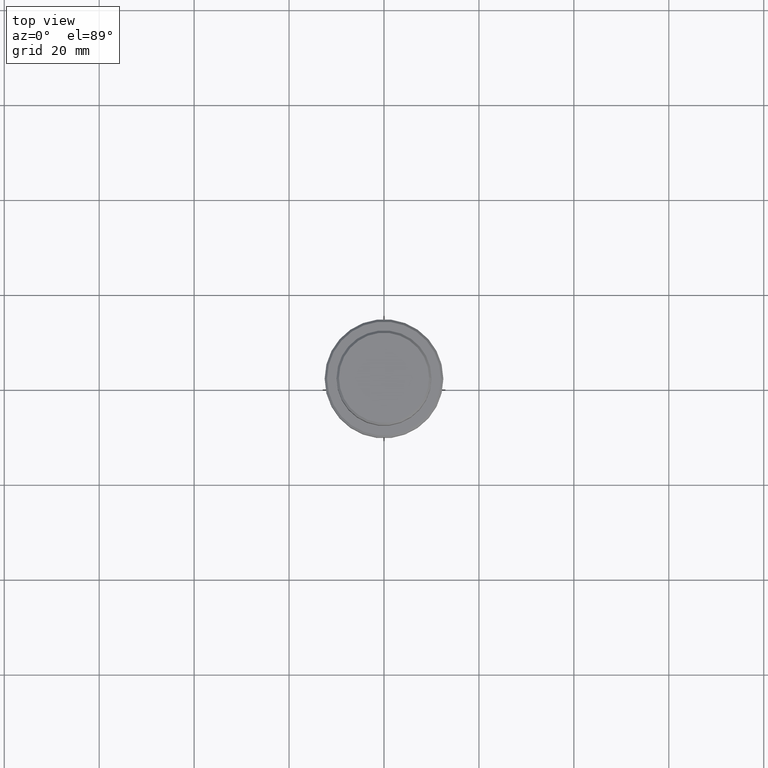
[diagram: clean part render]
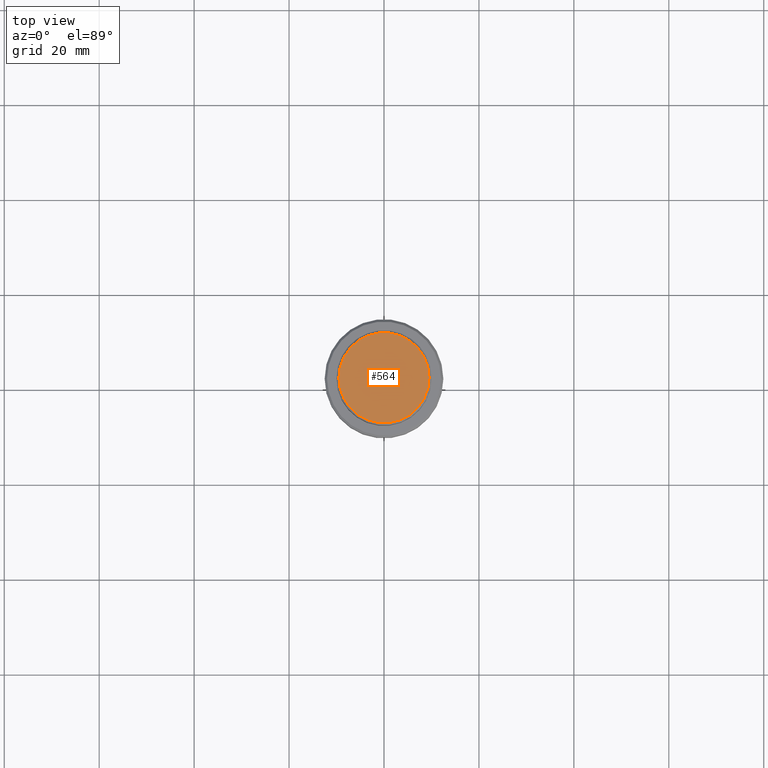
[diagram: same view with one face highlighted and labeled with its STEP entity id]
A machine part, top view. The second image highlights one B-rep face of the part: STEP entity #564.
In plain terms, the highlighted planar face has unit normal (0, -0, 1).
Its self-contained STEP definition (entity closure, byte-faithful):
#1 = PLANE ( 'NONE',  #550 ) ;
#16 = EDGE_LOOP ( 'NONE', ( #1043, #601 ) ) ;
#50 = VERTEX_POINT ( 'NONE', #798 ) ;
#156 = DIRECTION ( 'NONE',  ( -0.000000000000000000, -0.000000000000000000, 1.000000000000000000 ) ) ;
#255 = CIRCLE ( 'NONE', #1164, 9.500000000000008882 ) ;
#326 = CARTESIAN_POINT ( 'NONE',  ( 0.000000000000000000, 0.000000000000000000, 0.000000000000000000 ) ) ;
#504 = DIRECTION ( 'NONE',  ( -0.000000000000000000, -0.000000000000000000, 1.000000000000000000 ) ) ;
#550 = AXIS2_PLACEMENT_3D ( 'NONE', #326, #1401, #1409 ) ;
#564 = ADVANCED_FACE ( 'NONE', ( #649 ), #1, .T. ) ;
#593 = AXIS2_PLACEMENT_3D ( 'NONE', #1156, #504, #1057 ) ;
#601 = ORIENTED_EDGE ( 'NONE', *, *, #1363, .T. ) ;
#649 = FACE_OUTER_BOUND ( 'NONE', #16, .T. ) ;
#695 = CARTESIAN_POINT ( 'NONE',  ( 0.000000000000000000, 0.000000000000000000, 0.000000000000000000 ) ) ;
#701 = CIRCLE ( 'NONE', #593, 9.500000000000008882 ) ;
#798 = CARTESIAN_POINT ( 'NONE',  ( -9.500000000000008882, 0.000000000000000000, 0.000000000000000000 ) ) ;
#843 = EDGE_CURVE ( 'NONE', #50, #945, #255, .T. ) ;
#945 = VERTEX_POINT ( 'NONE', #1085 ) ;
#1043 = ORIENTED_EDGE ( 'NONE', *, *, #843, .T. ) ;
#1057 = DIRECTION ( 'NONE',  ( 1.000000000000000000, 0.000000000000000000, 0.000000000000000000 ) ) ;
#1085 = CARTESIAN_POINT ( 'NONE',  ( 9.500000000000008882, 1.194030629168669864E-15, 0.000000000000000000 ) ) ;
#1156 = CARTESIAN_POINT ( 'NONE',  ( 0.000000000000000000, 0.000000000000000000, 0.000000000000000000 ) ) ;
#1164 = AXIS2_PLACEMENT_3D ( 'NONE', #695, #156, #1192 ) ;
#1192 = DIRECTION ( 'NONE',  ( 1.000000000000000000, 0.000000000000000000, 0.000000000000000000 ) ) ;
#1363 = EDGE_CURVE ( 'NONE', #945, #50, #701, .T. ) ;
#1401 = DIRECTION ( 'NONE',  ( 0.000000000000000000, -0.000000000000000000, 1.000000000000000000 ) ) ;
#1409 = DIRECTION ( 'NONE',  ( 1.000000000000000000, 0.000000000000000000, 0.000000000000000000 ) ) ;